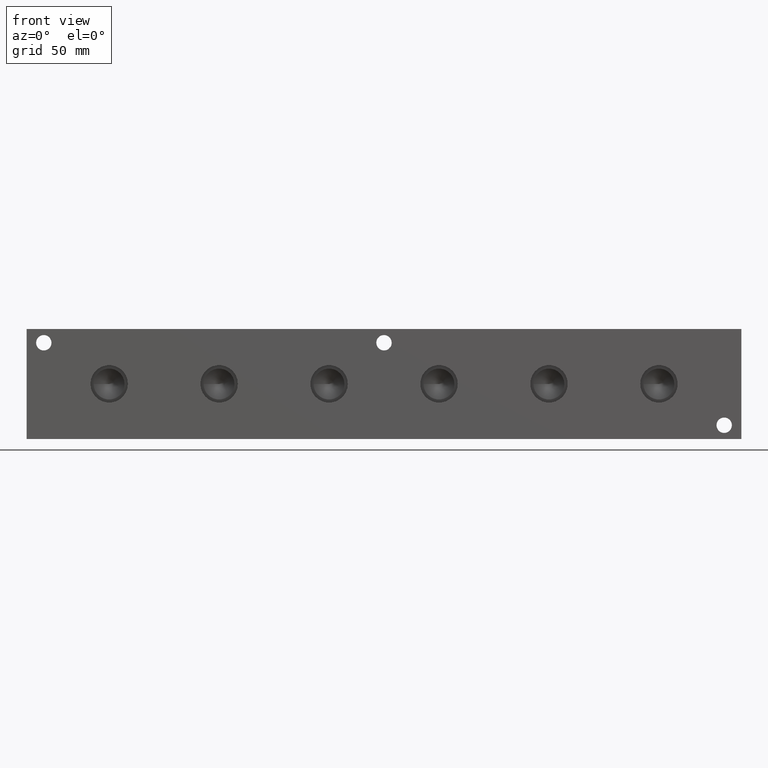
[diagram: clean part render]
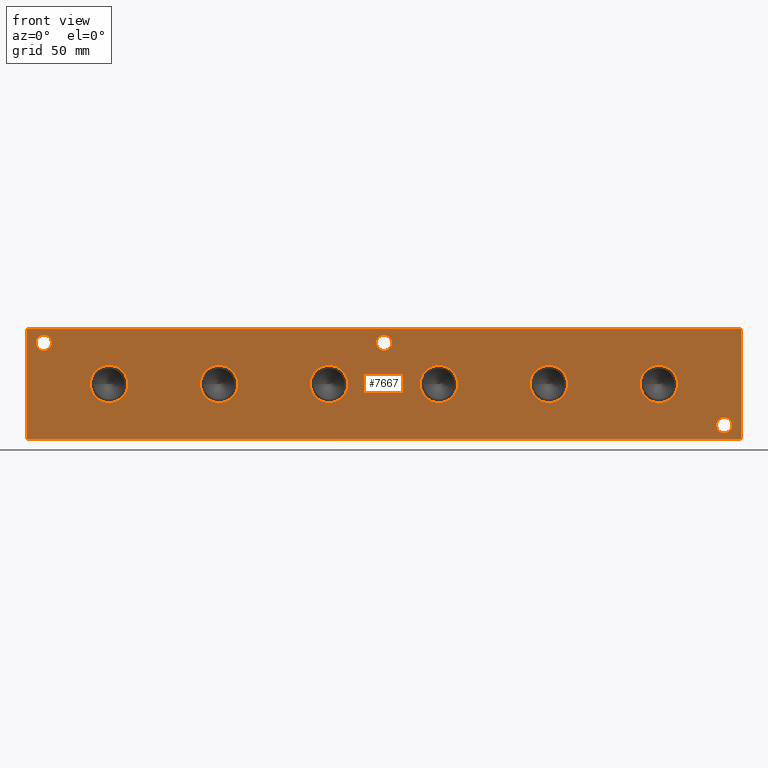
[diagram: same view with one face highlighted and labeled with its STEP entity id]
A machine part, front view. The second image highlights one B-rep face of the part: STEP entity #7667.
In plain terms, the highlighted planar face has unit normal (0, -1, 0).
Its self-contained STEP definition (entity closure, byte-faithful):
#98=CIRCLE('',#7900,3.5687);
#99=CIRCLE('',#7901,3.5687);
#101=CIRCLE('',#7910,3.5687);
#102=CIRCLE('',#7911,3.5687);
#104=CIRCLE('',#7919,3.5687);
#105=CIRCLE('',#7920,3.5687);
#112=CIRCLE('',#7937,8.6487);
#113=CIRCLE('',#7938,8.6487);
#119=CIRCLE('',#7948,8.6487);
#120=CIRCLE('',#7949,8.6487);
#126=CIRCLE('',#7959,8.6487);
#127=CIRCLE('',#7960,8.6487);
#133=CIRCLE('',#7970,8.6487);
#134=CIRCLE('',#7971,8.6487);
#140=CIRCLE('',#7981,8.6487);
#141=CIRCLE('',#7982,8.6487);
#147=CIRCLE('',#7992,8.6487);
#148=CIRCLE('',#7993,8.6487);
#254=FACE_BOUND('',#1323,.T.);
#255=FACE_BOUND('',#1324,.T.);
#256=FACE_BOUND('',#1325,.T.);
#257=FACE_BOUND('',#1326,.T.);
#258=FACE_BOUND('',#1327,.T.);
#259=FACE_BOUND('',#1328,.T.);
#260=FACE_BOUND('',#1329,.T.);
#261=FACE_BOUND('',#1330,.T.);
#262=FACE_BOUND('',#1331,.T.);
#480=PLANE('',#8080);
#872=FACE_OUTER_BOUND('',#1322,.T.);
#1322=EDGE_LOOP('',(#6817,#6818,#6819,#6820));
#1323=EDGE_LOOP('',(#6821,#6822));
#1324=EDGE_LOOP('',(#6823,#6824));
#1325=EDGE_LOOP('',(#6825,#6826));
#1326=EDGE_LOOP('',(#6827,#6828));
#1327=EDGE_LOOP('',(#6829,#6830));
#1328=EDGE_LOOP('',(#6831,#6832));
#1329=EDGE_LOOP('',(#6833,#6834));
#1330=EDGE_LOOP('',(#6835,#6836));
#1331=EDGE_LOOP('',(#6837,#6838));
#1582=LINE('',#11996,#2270);
#2018=LINE('',#13301,#2706);
#2023=LINE('',#13310,#2711);
#2024=LINE('',#13312,#2712);
#2270=VECTOR('',#8440,10.);
#2706=VECTOR('',#9554,10.);
#2711=VECTOR('',#9563,10.);
#2712=VECTOR('',#9566,10.);
#3269=VERTEX_POINT('',#11994);
#3270=VERTEX_POINT('',#11995);
#3553=VERTEX_POINT('',#12948);
#3554=VERTEX_POINT('',#12949);
#3558=VERTEX_POINT('',#12966);
#3559=VERTEX_POINT('',#12967);
#3563=VERTEX_POINT('',#12982);
#3564=VERTEX_POINT('',#12983);
#3574=VERTEX_POINT('',#13016);
#3575=VERTEX_POINT('',#13017);
#3582=VERTEX_POINT('',#13038);
#3583=VERTEX_POINT('',#13039);
#3590=VERTEX_POINT('',#13060);
#3591=VERTEX_POINT('',#13061);
#3598=VERTEX_POINT('',#13082);
#3599=VERTEX_POINT('',#13083);
#3606=VERTEX_POINT('',#13104);
#3607=VERTEX_POINT('',#13105);
#3614=VERTEX_POINT('',#13126);
#3615=VERTEX_POINT('',#13127);
#3672=VERTEX_POINT('',#13299);
#3674=VERTEX_POINT('',#13308);
#4146=EDGE_CURVE('',#3269,#3270,#1582,.T.);
#4561=EDGE_CURVE('',#3553,#3554,#98,.T.);
#4562=EDGE_CURVE('',#3554,#3553,#99,.T.);
#4571=EDGE_CURVE('',#3558,#3559,#101,.T.);
#4572=EDGE_CURVE('',#3559,#3558,#102,.T.);
#4580=EDGE_CURVE('',#3563,#3564,#104,.T.);
#4581=EDGE_CURVE('',#3564,#3563,#105,.T.);
#4597=EDGE_CURVE('',#3574,#3575,#112,.T.);
#4598=EDGE_CURVE('',#3575,#3574,#113,.T.);
#4607=EDGE_CURVE('',#3582,#3583,#119,.T.);
#4608=EDGE_CURVE('',#3583,#3582,#120,.T.);
#4617=EDGE_CURVE('',#3590,#3591,#126,.T.);
#4618=EDGE_CURVE('',#3591,#3590,#127,.T.);
#4627=EDGE_CURVE('',#3598,#3599,#133,.T.);
#4628=EDGE_CURVE('',#3599,#3598,#134,.T.);
#4637=EDGE_CURVE('',#3606,#3607,#140,.T.);
#4638=EDGE_CURVE('',#3607,#3606,#141,.T.);
#4647=EDGE_CURVE('',#3614,#3615,#147,.T.);
#4648=EDGE_CURVE('',#3615,#3614,#148,.T.);
#4726=EDGE_CURVE('',#3672,#3269,#2018,.T.);
#4731=EDGE_CURVE('',#3674,#3270,#2023,.T.);
#4732=EDGE_CURVE('',#3672,#3674,#2024,.T.);
#6817=ORIENTED_EDGE('',*,*,#4732,.T.);
#6818=ORIENTED_EDGE('',*,*,#4731,.T.);
#6819=ORIENTED_EDGE('',*,*,#4146,.F.);
#6820=ORIENTED_EDGE('',*,*,#4726,.F.);
#6821=ORIENTED_EDGE('',*,*,#4561,.T.);
#6822=ORIENTED_EDGE('',*,*,#4562,.T.);
#6823=ORIENTED_EDGE('',*,*,#4571,.T.);
#6824=ORIENTED_EDGE('',*,*,#4572,.T.);
#6825=ORIENTED_EDGE('',*,*,#4580,.T.);
#6826=ORIENTED_EDGE('',*,*,#4581,.T.);
#6827=ORIENTED_EDGE('',*,*,#4597,.T.);
#6828=ORIENTED_EDGE('',*,*,#4598,.T.);
#6829=ORIENTED_EDGE('',*,*,#4607,.T.);
#6830=ORIENTED_EDGE('',*,*,#4608,.T.);
#6831=ORIENTED_EDGE('',*,*,#4617,.T.);
#6832=ORIENTED_EDGE('',*,*,#4618,.T.);
#6833=ORIENTED_EDGE('',*,*,#4627,.T.);
#6834=ORIENTED_EDGE('',*,*,#4628,.T.);
#6835=ORIENTED_EDGE('',*,*,#4637,.T.);
#6836=ORIENTED_EDGE('',*,*,#4638,.T.);
#6837=ORIENTED_EDGE('',*,*,#4647,.T.);
#6838=ORIENTED_EDGE('',*,*,#4648,.T.);
#7667=ADVANCED_FACE('',(#872,#254,#255,#256,#257,#258,#259,#260,#261,#262),
#480,.T.);
#7900=AXIS2_PLACEMENT_3D('',#12950,#9143,#9144);
#7901=AXIS2_PLACEMENT_3D('',#12951,#9145,#9146);
#7910=AXIS2_PLACEMENT_3D('',#12968,#9166,#9167);
#7911=AXIS2_PLACEMENT_3D('',#12969,#9168,#9169);
#7919=AXIS2_PLACEMENT_3D('',#12984,#9186,#9187);
#7920=AXIS2_PLACEMENT_3D('',#12985,#9188,#9189);
#7937=AXIS2_PLACEMENT_3D('',#13018,#9227,#9228);
#7938=AXIS2_PLACEMENT_3D('',#13019,#9229,#9230);
#7948=AXIS2_PLACEMENT_3D('',#13040,#9252,#9253);
#7949=AXIS2_PLACEMENT_3D('',#13041,#9254,#9255);
#7959=AXIS2_PLACEMENT_3D('',#13062,#9277,#9278);
#7960=AXIS2_PLACEMENT_3D('',#13063,#9279,#9280);
#7970=AXIS2_PLACEMENT_3D('',#13084,#9302,#9303);
#7971=AXIS2_PLACEMENT_3D('',#13085,#9304,#9305);
#7981=AXIS2_PLACEMENT_3D('',#13106,#9327,#9328);
#7982=AXIS2_PLACEMENT_3D('',#13107,#9329,#9330);
#7992=AXIS2_PLACEMENT_3D('',#13128,#9352,#9353);
#7993=AXIS2_PLACEMENT_3D('',#13129,#9354,#9355);
#8080=AXIS2_PLACEMENT_3D('',#13311,#9564,#9565);
#8440=DIRECTION('',(1.,0.,0.));
#9143=DIRECTION('center_axis',(0.,1.,0.));
#9144=DIRECTION('ref_axis',(1.,0.,0.));
#9145=DIRECTION('center_axis',(0.,1.,0.));
#9146=DIRECTION('ref_axis',(1.,0.,0.));
#9166=DIRECTION('center_axis',(0.,1.,0.));
#9167=DIRECTION('ref_axis',(1.,0.,0.));
#9168=DIRECTION('center_axis',(0.,1.,0.));
#9169=DIRECTION('ref_axis',(1.,0.,0.));
#9186=DIRECTION('center_axis',(0.,1.,0.));
#9187=DIRECTION('ref_axis',(1.,0.,0.));
#9188=DIRECTION('center_axis',(0.,1.,0.));
#9189=DIRECTION('ref_axis',(1.,0.,0.));
#9227=DIRECTION('center_axis',(0.,1.,0.));
#9228=DIRECTION('ref_axis',(1.,0.,0.));
#9229=DIRECTION('center_axis',(0.,1.,0.));
#9230=DIRECTION('ref_axis',(1.,0.,0.));
#9252=DIRECTION('center_axis',(0.,1.,0.));
#9253=DIRECTION('ref_axis',(1.,0.,0.));
#9254=DIRECTION('center_axis',(0.,1.,0.));
#9255=DIRECTION('ref_axis',(1.,0.,0.));
#9277=DIRECTION('center_axis',(0.,1.,0.));
#9278=DIRECTION('ref_axis',(1.,0.,0.));
#9279=DIRECTION('center_axis',(0.,1.,0.));
#9280=DIRECTION('ref_axis',(1.,0.,0.));
#9302=DIRECTION('center_axis',(0.,1.,0.));
#9303=DIRECTION('ref_axis',(1.,0.,0.));
#9304=DIRECTION('center_axis',(0.,1.,0.));
#9305=DIRECTION('ref_axis',(1.,0.,0.));
#9327=DIRECTION('center_axis',(0.,1.,0.));
#9328=DIRECTION('ref_axis',(1.,0.,0.));
#9329=DIRECTION('center_axis',(0.,1.,0.));
#9330=DIRECTION('ref_axis',(1.,0.,0.));
#9352=DIRECTION('center_axis',(0.,1.,0.));
#9353=DIRECTION('ref_axis',(1.,0.,0.));
#9354=DIRECTION('center_axis',(0.,1.,0.));
#9355=DIRECTION('ref_axis',(1.,0.,0.));
#9554=DIRECTION('',(0.,0.,1.));
#9563=DIRECTION('',(0.,0.,1.));
#9564=DIRECTION('center_axis',(0.,-1.,0.));
#9565=DIRECTION('ref_axis',(1.,0.,0.));
#9566=DIRECTION('',(1.,0.,0.));
#11994=CARTESIAN_POINT('',(0.,0.,50.8));
#11995=CARTESIAN_POINT('',(330.2,0.,50.8));
#11996=CARTESIAN_POINT('',(0.,0.,50.8));
#12948=CARTESIAN_POINT('',(325.8439,0.,6.35));
#12949=CARTESIAN_POINT('',(318.7065,0.,6.35));
#12950=CARTESIAN_POINT('Origin',(322.2752,0.,6.35));
#12951=CARTESIAN_POINT('Origin',(322.2752,0.,6.35));
#12966=CARTESIAN_POINT('',(11.4935,0.,44.45));
#12967=CARTESIAN_POINT('',(4.3561,0.,44.45));
#12968=CARTESIAN_POINT('Origin',(7.9248,0.,44.45));
#12969=CARTESIAN_POINT('Origin',(7.9248,0.,44.45));
#12982=CARTESIAN_POINT('',(168.6687,0.,44.45));
#12983=CARTESIAN_POINT('',(161.5313,0.,44.45));
#12984=CARTESIAN_POINT('Origin',(165.1,0.,44.45));
#12985=CARTESIAN_POINT('Origin',(165.1,0.,44.45));
#13016=CARTESIAN_POINT('',(249.9487,0.,25.4));
#13017=CARTESIAN_POINT('',(232.6513,0.,25.4));
#13018=CARTESIAN_POINT('Origin',(241.3,0.,25.4));
#13019=CARTESIAN_POINT('Origin',(241.3,0.,25.4));
#13038=CARTESIAN_POINT('',(148.3487,0.,25.4));
#13039=CARTESIAN_POINT('',(131.0513,0.,25.4));
#13040=CARTESIAN_POINT('Origin',(139.7,0.,25.4));
#13041=CARTESIAN_POINT('Origin',(139.7,0.,25.4));
#13060=CARTESIAN_POINT('',(46.7487,0.,25.4));
#13061=CARTESIAN_POINT('',(29.4513,0.,25.4));
#13062=CARTESIAN_POINT('Origin',(38.1,0.,25.4));
#13063=CARTESIAN_POINT('Origin',(38.1,0.,25.4));
#13082=CARTESIAN_POINT('',(97.5487,0.,25.4));
#13083=CARTESIAN_POINT('',(80.2513,0.,25.4));
#13084=CARTESIAN_POINT('Origin',(88.9,0.,25.4));
#13085=CARTESIAN_POINT('Origin',(88.9,0.,25.4));
#13104=CARTESIAN_POINT('',(199.1487,0.,25.4));
#13105=CARTESIAN_POINT('',(181.8513,0.,25.4));
#13106=CARTESIAN_POINT('Origin',(190.5,0.,25.4));
#13107=CARTESIAN_POINT('Origin',(190.5,0.,25.4));
#13126=CARTESIAN_POINT('',(300.7487,0.,25.4));
#13127=CARTESIAN_POINT('',(283.4513,0.,25.4));
#13128=CARTESIAN_POINT('Origin',(292.1,0.,25.4));
#13129=CARTESIAN_POINT('Origin',(292.1,0.,25.4));
#13299=CARTESIAN_POINT('',(0.,0.,0.));
#13301=CARTESIAN_POINT('',(0.,0.,0.));
#13308=CARTESIAN_POINT('',(330.2,0.,0.));
#13310=CARTESIAN_POINT('',(330.2,0.,0.));
#13311=CARTESIAN_POINT('Origin',(0.,0.,0.));
#13312=CARTESIAN_POINT('',(0.,0.,0.));